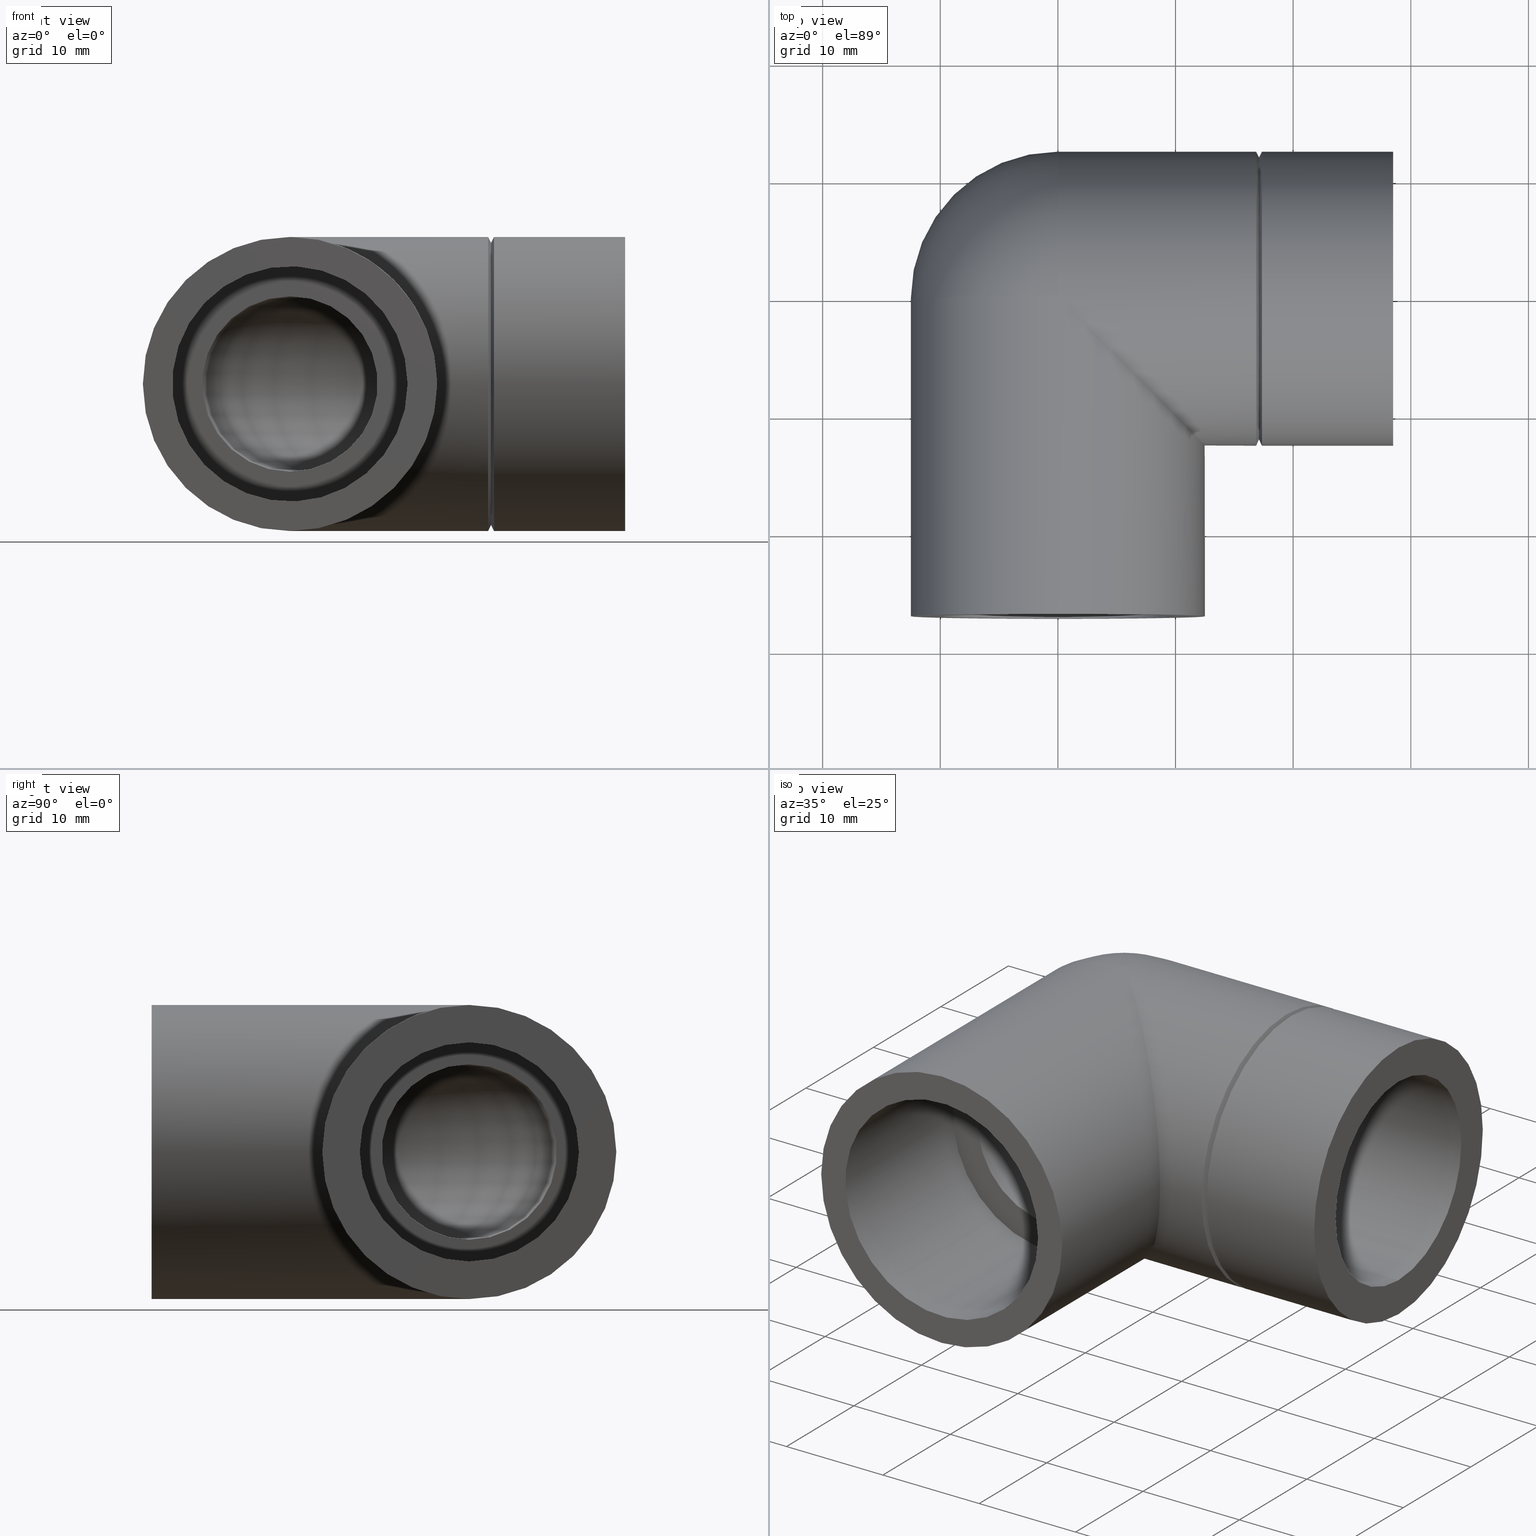
[diagram: canonical four-view strip — front | top / right | iso, engineering-drawing reading convention]
A machine part, canonical four-view strip (front | top / right | iso — engineering-drawing reading convention). The complete STEP part file that produces these views, byte-faithful:
ISO-10303-21;
HEADER;
/* Generated by software containing ST-Developer
 * from STEP Tools, Inc. (www.steptools.com) 
 */

FILE_DESCRIPTION(
/* description */ ('ELBOW 90\X\B0 THR-CEM REINF. R 20-1/2"'),
/* implementation_level */ '2;1');

FILE_NAME(
/* name */ 
'C:\\Dropbox\\KIMPROJECTS-Inventor\\99-16-3568-Processing\\PVC Catalog
 2017\\057502\\057502020005.ipt.stp',
/* time_stamp */ '2017-12-07T16:06:10+02:00',
/* author */ ('KIM'),
/* organization */ (''),
/* preprocessor_version */ 'ST-DEVELOPER v15.6',
/* originating_system */ 'Autodesk Inventor 2015',
/* authorisation */ '');

FILE_SCHEMA (('AUTOMOTIVE_DESIGN { 1 0 10303 214 3 1 1 }'));
ENDSEC;

DATA;
#10=MECHANICAL_DESIGN_GEOMETRIC_PRESENTATION_REPRESENTATION('',(#13),#329);
#11=SHAPE_REPRESENTATION_RELATIONSHIP('SRR','None',#338,#12);
#12=ADVANCED_BREP_SHAPE_REPRESENTATION($,(#14),#328);
#13=STYLED_ITEM('',(#347),#14);
#14=MANIFOLD_SOLID_BREP('Solid1',#182);
#15=CONICAL_SURFACE('',#208,12.25,63.4349488229221);
#16=CONICAL_SURFACE('',#210,12.25,63.4349488229219);
#17=ELLIPSE('',#204,17.6776695296637,12.5);
#18=SPHERICAL_SURFACE('',#199,12.5);
#19=PLANE('',#194);
#20=PLANE('',#198);
#21=PLANE('',#205);
#22=PLANE('',#214);
#23=TOROIDAL_SURFACE('',#187,9.3155,7.4524);
#24=FACE_BOUND('',#54,.T.);
#25=FACE_BOUND('',#56,.T.);
#26=FACE_BOUND('',#58,.T.);
#27=FACE_BOUND('',#60,.T.);
#28=FACE_BOUND('',#62,.T.);
#29=FACE_BOUND('',#64,.T.);
#30=FACE_BOUND('',#66,.T.);
#31=FACE_BOUND('',#69,.T.);
#32=FACE_BOUND('',#71,.T.);
#33=FACE_BOUND('',#73,.T.);
#34=FACE_BOUND('',#75,.T.);
#35=FACE_BOUND('',#77,.T.);
#36=FACE_BOUND('',#79,.T.);
#37=FACE_BOUND('',#81,.T.);
#38=FACE_OUTER_BOUND('',#53,.T.);
#39=FACE_OUTER_BOUND('',#55,.T.);
#40=FACE_OUTER_BOUND('',#57,.T.);
#41=FACE_OUTER_BOUND('',#59,.T.);
#42=FACE_OUTER_BOUND('',#61,.T.);
#43=FACE_OUTER_BOUND('',#63,.T.);
#44=FACE_OUTER_BOUND('',#65,.T.);
#45=FACE_OUTER_BOUND('',#67,.T.);
#46=FACE_OUTER_BOUND('',#68,.T.);
#47=FACE_OUTER_BOUND('',#70,.T.);
#48=FACE_OUTER_BOUND('',#72,.T.);
#49=FACE_OUTER_BOUND('',#74,.T.);
#50=FACE_OUTER_BOUND('',#76,.T.);
#51=FACE_OUTER_BOUND('',#78,.T.);
#52=FACE_OUTER_BOUND('',#80,.T.);
#53=EDGE_LOOP('',(#128));
#54=EDGE_LOOP('',(#129));
#55=EDGE_LOOP('',(#130));
#56=EDGE_LOOP('',(#131));
#57=EDGE_LOOP('',(#132));
#58=EDGE_LOOP('',(#133));
#59=EDGE_LOOP('',(#134));
#60=EDGE_LOOP('',(#135));
#61=EDGE_LOOP('',(#136));
#62=EDGE_LOOP('',(#137));
#63=EDGE_LOOP('',(#138));
#64=EDGE_LOOP('',(#139));
#65=EDGE_LOOP('',(#140));
#66=EDGE_LOOP('',(#141));
#67=EDGE_LOOP('',(#142,#143));
#68=EDGE_LOOP('',(#144));
#69=EDGE_LOOP('',(#145,#146));
#70=EDGE_LOOP('',(#147));
#71=EDGE_LOOP('',(#148));
#72=EDGE_LOOP('',(#149,#150));
#73=EDGE_LOOP('',(#151));
#74=EDGE_LOOP('',(#152));
#75=EDGE_LOOP('',(#153));
#76=EDGE_LOOP('',(#154));
#77=EDGE_LOOP('',(#155));
#78=EDGE_LOOP('',(#156));
#79=EDGE_LOOP('',(#157));
#80=EDGE_LOOP('',(#158));
#81=EDGE_LOOP('',(#159));
#82=CIRCLE('',#185,7.4524);
#83=CIRCLE('',#186,7.4524);
#84=CIRCLE('',#188,7.4524);
#85=CIRCLE('',#190,7.4524);
#86=CIRCLE('',#192,10.);
#87=CIRCLE('',#193,10.);
#88=CIRCLE('',#196,9.3155);
#89=CIRCLE('',#197,9.3155);
#90=CIRCLE('',#200,12.5);
#91=CIRCLE('',#201,12.5);
#92=CIRCLE('',#203,12.5);
#93=CIRCLE('',#207,12.5);
#94=CIRCLE('',#209,12.);
#95=CIRCLE('',#211,12.5);
#96=CIRCLE('',#213,12.5);
#97=VERTEX_POINT('',#281);
#98=VERTEX_POINT('',#283);
#99=VERTEX_POINT('',#286);
#100=VERTEX_POINT('',#289);
#101=VERTEX_POINT('',#292);
#102=VERTEX_POINT('',#294);
#103=VERTEX_POINT('',#298);
#104=VERTEX_POINT('',#300);
#105=VERTEX_POINT('',#304);
#106=VERTEX_POINT('',#305);
#107=VERTEX_POINT('',#309);
#108=VERTEX_POINT('',#314);
#109=VERTEX_POINT('',#317);
#110=VERTEX_POINT('',#320);
#111=VERTEX_POINT('',#323);
#112=EDGE_CURVE('',#97,#97,#82,.T.);
#113=EDGE_CURVE('',#98,#98,#83,.T.);
#114=EDGE_CURVE('',#99,#99,#84,.T.);
#115=EDGE_CURVE('',#100,#100,#85,.T.);
#116=EDGE_CURVE('',#101,#101,#86,.T.);
#117=EDGE_CURVE('',#102,#102,#87,.T.);
#118=EDGE_CURVE('',#103,#103,#88,.T.);
#119=EDGE_CURVE('',#104,#104,#89,.T.);
#120=EDGE_CURVE('',#105,#106,#90,.T.);
#121=EDGE_CURVE('',#105,#106,#91,.T.);
#122=EDGE_CURVE('',#107,#107,#92,.T.);
#123=EDGE_CURVE('',#106,#105,#17,.T.);
#124=EDGE_CURVE('',#108,#108,#93,.T.);
#125=EDGE_CURVE('',#109,#109,#94,.T.);
#126=EDGE_CURVE('',#110,#110,#95,.T.);
#127=EDGE_CURVE('',#111,#111,#96,.T.);
#128=ORIENTED_EDGE('',*,*,#112,.F.);
#129=ORIENTED_EDGE('',*,*,#113,.F.);
#130=ORIENTED_EDGE('',*,*,#113,.T.);
#131=ORIENTED_EDGE('',*,*,#114,.F.);
#132=ORIENTED_EDGE('',*,*,#114,.T.);
#133=ORIENTED_EDGE('',*,*,#115,.F.);
#134=ORIENTED_EDGE('',*,*,#116,.T.);
#135=ORIENTED_EDGE('',*,*,#117,.F.);
#136=ORIENTED_EDGE('',*,*,#116,.F.);
#137=ORIENTED_EDGE('',*,*,#112,.T.);
#138=ORIENTED_EDGE('',*,*,#118,.T.);
#139=ORIENTED_EDGE('',*,*,#119,.F.);
#140=ORIENTED_EDGE('',*,*,#118,.F.);
#141=ORIENTED_EDGE('',*,*,#115,.T.);
#142=ORIENTED_EDGE('',*,*,#120,.F.);
#143=ORIENTED_EDGE('',*,*,#121,.T.);
#144=ORIENTED_EDGE('',*,*,#122,.T.);
#145=ORIENTED_EDGE('',*,*,#123,.F.);
#146=ORIENTED_EDGE('',*,*,#121,.F.);
#147=ORIENTED_EDGE('',*,*,#122,.F.);
#148=ORIENTED_EDGE('',*,*,#117,.T.);
#149=ORIENTED_EDGE('',*,*,#123,.T.);
#150=ORIENTED_EDGE('',*,*,#120,.T.);
#151=ORIENTED_EDGE('',*,*,#124,.F.);
#152=ORIENTED_EDGE('',*,*,#124,.T.);
#153=ORIENTED_EDGE('',*,*,#125,.F.);
#154=ORIENTED_EDGE('',*,*,#125,.T.);
#155=ORIENTED_EDGE('',*,*,#126,.F.);
#156=ORIENTED_EDGE('',*,*,#126,.T.);
#157=ORIENTED_EDGE('',*,*,#127,.F.);
#158=ORIENTED_EDGE('',*,*,#127,.T.);
#159=ORIENTED_EDGE('',*,*,#119,.T.);
#160=CYLINDRICAL_SURFACE('',#184,7.4524);
#161=CYLINDRICAL_SURFACE('',#189,7.4524);
#162=CYLINDRICAL_SURFACE('',#191,10.);
#163=CYLINDRICAL_SURFACE('',#195,9.3155);
#164=CYLINDRICAL_SURFACE('',#202,12.5);
#165=CYLINDRICAL_SURFACE('',#206,12.5);
#166=CYLINDRICAL_SURFACE('',#212,12.5);
#167=ADVANCED_FACE('',(#38,#24),#160,.F.);
#168=ADVANCED_FACE('',(#39,#25),#23,.F.);
#169=ADVANCED_FACE('',(#40,#26),#161,.F.);
#170=ADVANCED_FACE('',(#41,#27),#162,.F.);
#171=ADVANCED_FACE('',(#42,#28),#19,.T.);
#172=ADVANCED_FACE('',(#43,#29),#163,.F.);
#173=ADVANCED_FACE('',(#44,#30),#20,.T.);
#174=ADVANCED_FACE('',(#45),#18,.T.);
#175=ADVANCED_FACE('',(#46,#31),#164,.T.);
#176=ADVANCED_FACE('',(#47,#32),#21,.T.);
#177=ADVANCED_FACE('',(#48,#33),#165,.T.);
#178=ADVANCED_FACE('',(#49,#34),#15,.T.);
#179=ADVANCED_FACE('',(#50,#35),#16,.T.);
#180=ADVANCED_FACE('',(#51,#36),#166,.T.);
#181=ADVANCED_FACE('',(#52,#37),#22,.T.);
#182=CLOSED_SHELL('',(#167,#168,#169,#170,#171,#172,#173,#174,#175,#176,
#177,#178,#179,#180,#181));
#183=AXIS2_PLACEMENT_3D('placement',#279,#215,#216);
#184=AXIS2_PLACEMENT_3D('',#280,#217,#218);
#185=AXIS2_PLACEMENT_3D('',#282,#219,#220);
#186=AXIS2_PLACEMENT_3D('',#284,#221,#222);
#187=AXIS2_PLACEMENT_3D('',#285,#223,#224);
#188=AXIS2_PLACEMENT_3D('',#287,#225,#226);
#189=AXIS2_PLACEMENT_3D('',#288,#227,#228);
#190=AXIS2_PLACEMENT_3D('',#290,#229,#230);
#191=AXIS2_PLACEMENT_3D('',#291,#231,#232);
#192=AXIS2_PLACEMENT_3D('',#293,#233,#234);
#193=AXIS2_PLACEMENT_3D('',#295,#235,#236);
#194=AXIS2_PLACEMENT_3D('',#296,#237,#238);
#195=AXIS2_PLACEMENT_3D('',#297,#239,#240);
#196=AXIS2_PLACEMENT_3D('',#299,#241,#242);
#197=AXIS2_PLACEMENT_3D('',#301,#243,#244);
#198=AXIS2_PLACEMENT_3D('',#302,#245,#246);
#199=AXIS2_PLACEMENT_3D('',#303,#247,#248);
#200=AXIS2_PLACEMENT_3D('',#306,#249,#250);
#201=AXIS2_PLACEMENT_3D('',#307,#251,#252);
#202=AXIS2_PLACEMENT_3D('',#308,#253,#254);
#203=AXIS2_PLACEMENT_3D('',#310,#255,#256);
#204=AXIS2_PLACEMENT_3D('',#311,#257,#258);
#205=AXIS2_PLACEMENT_3D('',#312,#259,#260);
#206=AXIS2_PLACEMENT_3D('',#313,#261,#262);
#207=AXIS2_PLACEMENT_3D('',#315,#263,#264);
#208=AXIS2_PLACEMENT_3D('',#316,#265,#266);
#209=AXIS2_PLACEMENT_3D('',#318,#267,#268);
#210=AXIS2_PLACEMENT_3D('',#319,#269,#270);
#211=AXIS2_PLACEMENT_3D('',#321,#271,#272);
#212=AXIS2_PLACEMENT_3D('',#322,#273,#274);
#213=AXIS2_PLACEMENT_3D('',#324,#275,#276);
#214=AXIS2_PLACEMENT_3D('',#325,#277,#278);
#215=DIRECTION('axis',(0.,0.,1.));
#216=DIRECTION('refdir',(1.,0.,0.));
#217=DIRECTION('center_axis',(2.1386116256378E-17,-1.,0.));
#218=DIRECTION('ref_axis',(0.,0.,1.));
#219=DIRECTION('center_axis',(-1.22464679914735E-16,1.,0.));
#220=DIRECTION('ref_axis',(0.,0.,1.));
#221=DIRECTION('center_axis',(-6.12323399573677E-17,-1.,0.));
#222=DIRECTION('ref_axis',(0.,0.,1.));
#223=DIRECTION('center_axis',(0.,0.,1.));
#224=DIRECTION('ref_axis',(1.,0.,0.));
#225=DIRECTION('center_axis',(-1.,0.,0.));
#226=DIRECTION('ref_axis',(0.,0.,1.));
#227=DIRECTION('center_axis',(-1.,-3.35169540798253E-18,0.));
#228=DIRECTION('ref_axis',(0.,0.,1.));
#229=DIRECTION('center_axis',(-1.,0.,0.));
#230=DIRECTION('ref_axis',(0.,0.,1.));
#231=DIRECTION('center_axis',(-1.38777878078145E-16,1.,0.));
#232=DIRECTION('ref_axis',(-1.,-1.38777878078145E-16,0.));
#233=DIRECTION('center_axis',(-1.22464679914735E-16,1.,0.));
#234=DIRECTION('ref_axis',(-1.,-1.22464679914735E-16,0.));
#235=DIRECTION('center_axis',(-1.22464679914735E-16,1.,0.));
#236=DIRECTION('ref_axis',(-1.,-1.38777878078145E-16,0.));
#237=DIRECTION('center_axis',(1.22464679914735E-16,-1.,0.));
#238=DIRECTION('ref_axis',(0.,0.,-1.));
#239=DIRECTION('center_axis',(-1.,0.,0.));
#240=DIRECTION('ref_axis',(0.,0.,1.));
#241=DIRECTION('center_axis',(-1.,0.,0.));
#242=DIRECTION('ref_axis',(0.,0.,1.));
#243=DIRECTION('center_axis',(-1.,0.,0.));
#244=DIRECTION('ref_axis',(0.,0.,1.));
#245=DIRECTION('center_axis',(1.,0.,0.));
#246=DIRECTION('ref_axis',(0.,0.,-1.));
#247=DIRECTION('center_axis',(6.12323399573677E-17,0.,1.));
#248=DIRECTION('ref_axis',(1.,0.,0.));
#249=DIRECTION('center_axis',(1.,0.,0.));
#250=DIRECTION('ref_axis',(0.,0.,-1.));
#251=DIRECTION('center_axis',(-1.22464679914735E-16,1.,0.));
#252=DIRECTION('ref_axis',(1.,1.22464679914735E-16,0.));
#253=DIRECTION('center_axis',(-1.22464679914735E-16,1.,0.));
#254=DIRECTION('ref_axis',(-1.,0.,0.));
#255=DIRECTION('center_axis',(-1.22464679914735E-16,1.,0.));
#256=DIRECTION('ref_axis',(1.,1.22464679914735E-16,0.));
#257=DIRECTION('center_axis',(0.707106781186547,0.707106781186548,0.));
#258=DIRECTION('ref_axis',(-0.707106781186548,0.707106781186547,0.));
#259=DIRECTION('center_axis',(1.22464679914735E-16,-1.,0.));
#260=DIRECTION('ref_axis',(0.,0.,-1.));
#261=DIRECTION('center_axis',(1.,0.,0.));
#262=DIRECTION('ref_axis',(0.,1.,0.));
#263=DIRECTION('center_axis',(1.,0.,0.));
#264=DIRECTION('ref_axis',(0.,0.,-1.));
#265=DIRECTION('center_axis',(-1.,0.,0.));
#266=DIRECTION('ref_axis',(0.,1.,0.));
#267=DIRECTION('center_axis',(1.,0.,0.));
#268=DIRECTION('ref_axis',(0.,0.,-1.));
#269=DIRECTION('center_axis',(1.,0.,0.));
#270=DIRECTION('ref_axis',(0.,1.,0.));
#271=DIRECTION('center_axis',(1.,0.,0.));
#272=DIRECTION('ref_axis',(0.,0.,-1.));
#273=DIRECTION('center_axis',(1.,0.,0.));
#274=DIRECTION('ref_axis',(0.,1.,0.));
#275=DIRECTION('center_axis',(1.,0.,0.));
#276=DIRECTION('ref_axis',(0.,0.,-1.));
#277=DIRECTION('center_axis',(1.,0.,0.));
#278=DIRECTION('ref_axis',(0.,0.,-1.));
#279=CARTESIAN_POINT('',(0.,0.,0.));
#280=CARTESIAN_POINT('Origin',(-1.10290124600642E-15,-9.31549999999999,
0.));
#281=CARTESIAN_POINT('',(-1.97953211376912E-15,-11.,-7.4524));
#282=CARTESIAN_POINT('Origin',(-1.06687633317255E-15,-11.,0.));
#283=CARTESIAN_POINT('',(-2.01555702660299E-15,-9.31549999999999,-7.4524));
#284=CARTESIAN_POINT('Origin',(-1.10290124600642E-15,-9.31549999999999,
0.));
#285=CARTESIAN_POINT('Origin',(9.3155,-9.3155,0.));
#286=CARTESIAN_POINT('',(9.3155,9.05334001977836E-16,-7.4524));
#287=CARTESIAN_POINT('Origin',(9.3155,-7.32177861873785E-18,0.));
#288=CARTESIAN_POINT('Origin',(11.5,0.,0.));
#289=CARTESIAN_POINT('',(11.5,9.12655780596574E-16,-7.4524));
#290=CARTESIAN_POINT('Origin',(11.5,0.,0.));
#291=CARTESIAN_POINT('Origin',(3.30654635769785E-15,-27.,0.));
#292=CARTESIAN_POINT('',(10.,-11.,1.22464679914735E-15));
#293=CARTESIAN_POINT('Origin',(1.08610030844754E-15,-11.,0.));
#294=CARTESIAN_POINT('',(10.,-27.,1.22464679914735E-15));
#295=CARTESIAN_POINT('Origin',(3.30654635769785E-15,-27.,0.));
#296=CARTESIAN_POINT('Origin',(5.50156104288387E-16,-11.,1.85037170770859E-16));
#297=CARTESIAN_POINT('Origin',(28.5,0.,0.));
#298=CARTESIAN_POINT('',(11.5,1.14081972574572E-15,-9.3155));
#299=CARTESIAN_POINT('Origin',(11.5,0.,0.));
#300=CARTESIAN_POINT('',(28.5,1.14081972574572E-15,-9.3155));
#301=CARTESIAN_POINT('Origin',(28.5,0.,0.));
#302=CARTESIAN_POINT('Origin',(11.5,0.,9.50683104788098E-17));
#303=CARTESIAN_POINT('Origin',(0.,0.,0.));
#304=CARTESIAN_POINT('',(0.,-9.37349864163661E-32,-12.5));
#305=CARTESIAN_POINT('',(0.,-9.37349864163661E-32,12.5));
#306=CARTESIAN_POINT('Origin',(0.,0.,0.));
#307=CARTESIAN_POINT('Origin',(0.,0.,0.));
#308=CARTESIAN_POINT('Origin',(1.65327317884893E-15,-13.5,0.));
#309=CARTESIAN_POINT('',(-12.5,-27.,0.));
#310=CARTESIAN_POINT('Origin',(3.30654635769785E-15,-27.,0.));
#311=CARTESIAN_POINT('Origin',(0.,0.,0.));
#312=CARTESIAN_POINT('Origin',(-12.5,-27.,0.));
#313=CARTESIAN_POINT('Origin',(8.425,0.,0.));
#314=CARTESIAN_POINT('',(16.85,12.5,0.));
#315=CARTESIAN_POINT('Origin',(16.85,0.,0.));
#316=CARTESIAN_POINT('Origin',(16.975,0.,0.));
#317=CARTESIAN_POINT('',(17.1,12.,0.));
#318=CARTESIAN_POINT('Origin',(17.1,0.,0.));
#319=CARTESIAN_POINT('Origin',(17.225,0.,0.));
#320=CARTESIAN_POINT('',(17.35,12.5,0.));
#321=CARTESIAN_POINT('Origin',(17.35,0.,0.));
#322=CARTESIAN_POINT('Origin',(22.925,0.,0.));
#323=CARTESIAN_POINT('',(28.5,12.5,0.));
#324=CARTESIAN_POINT('Origin',(28.5,0.,0.));
#325=CARTESIAN_POINT('Origin',(28.5,0.,0.));
#326=UNCERTAINTY_MEASURE_WITH_UNIT(LENGTH_MEASURE(0.01),#330,
'DISTANCE_ACCURACY_VALUE',
'Maximum model space distance between geometric entities at asserted c
onnectivities');
#327=UNCERTAINTY_MEASURE_WITH_UNIT(LENGTH_MEASURE(1.E-6),#330,
'DISTANCE_ACCURACY_VALUE',
'Maximum model space distance between geometric entities at asserted c
onnectivities');
#328=(
GEOMETRIC_REPRESENTATION_CONTEXT(3)
GLOBAL_UNCERTAINTY_ASSIGNED_CONTEXT((#326))
GLOBAL_UNIT_ASSIGNED_CONTEXT((#330,#333,#331))
REPRESENTATION_CONTEXT('','3D')
);
#329=(
GEOMETRIC_REPRESENTATION_CONTEXT(3)
GLOBAL_UNCERTAINTY_ASSIGNED_CONTEXT((#327))
GLOBAL_UNIT_ASSIGNED_CONTEXT((#330,#333,#331))
REPRESENTATION_CONTEXT('','3D')
);
#330=(
LENGTH_UNIT()
NAMED_UNIT(*)
SI_UNIT(.MILLI.,.METRE.)
);
#331=(
NAMED_UNIT(*)
SI_UNIT($,.STERADIAN.)
SOLID_ANGLE_UNIT()
);
#332=DIMENSIONAL_EXPONENTS(0.,0.,0.,0.,0.,0.,0.);
#333=(
CONVERSION_BASED_UNIT('degree',#335)
NAMED_UNIT(#332)
PLANE_ANGLE_UNIT()
);
#334=(
NAMED_UNIT(*)
PLANE_ANGLE_UNIT()
SI_UNIT($,.RADIAN.)
);
#335=PLANE_ANGLE_MEASURE_WITH_UNIT(PLANE_ANGLE_MEASURE(0.01745329252),#334);
#336=SHAPE_DEFINITION_REPRESENTATION(#337,#338);
#337=PRODUCT_DEFINITION_SHAPE('',$,#340);
#338=SHAPE_REPRESENTATION('',(#183),#328);
#339=PRODUCT_DEFINITION_CONTEXT('part definition',#344,'design');
#340=PRODUCT_DEFINITION('057502020005','057502020005',#341,#339);
#341=PRODUCT_DEFINITION_FORMATION('',$,#346);
#342=PRODUCT_RELATED_PRODUCT_CATEGORY('057502020005','057502020005',(#346));
#343=APPLICATION_PROTOCOL_DEFINITION('international standard',
'automotive_design',2009,#344);
#344=APPLICATION_CONTEXT(
'Core Data for Automotive Mechanical Design Process');
#345=PRODUCT_CONTEXT('part definition',#344,'mechanical');
#346=PRODUCT('057502020005','057502020005',$,(#345));
#347=PRESENTATION_STYLE_ASSIGNMENT((#348));
#348=SURFACE_STYLE_USAGE(.BOTH.,#349);
#349=SURFACE_SIDE_STYLE($,(#350));
#350=SURFACE_STYLE_FILL_AREA(#351);
#351=FILL_AREA_STYLE($,(#352));
#352=FILL_AREA_STYLE_COLOUR($,#353);
#353=COLOUR_RGB('',0.749019607843137,0.749019607843137,0.749019607843137);
ENDSEC;
END-ISO-10303-21;
